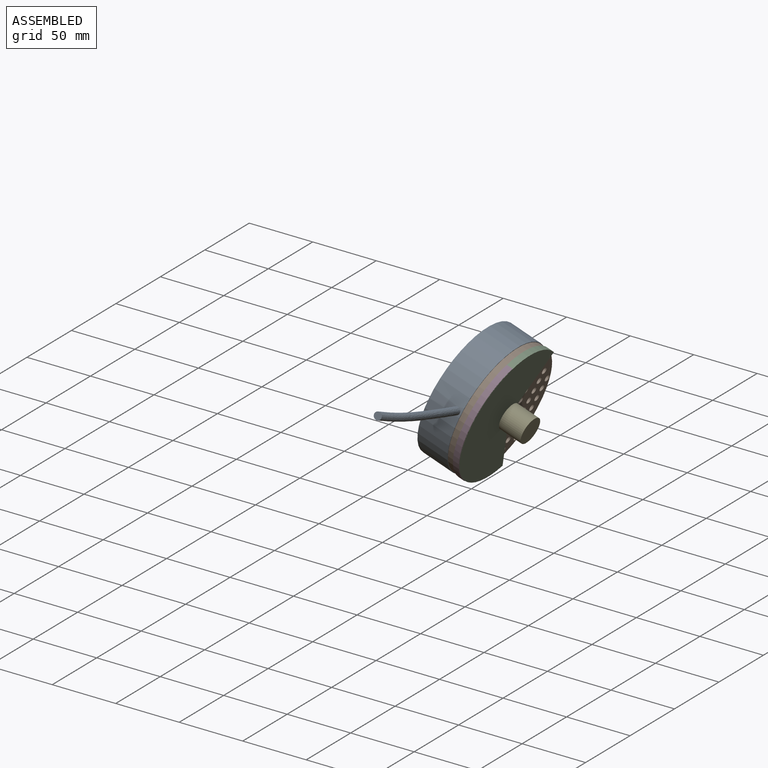
[diagram: assembled view]
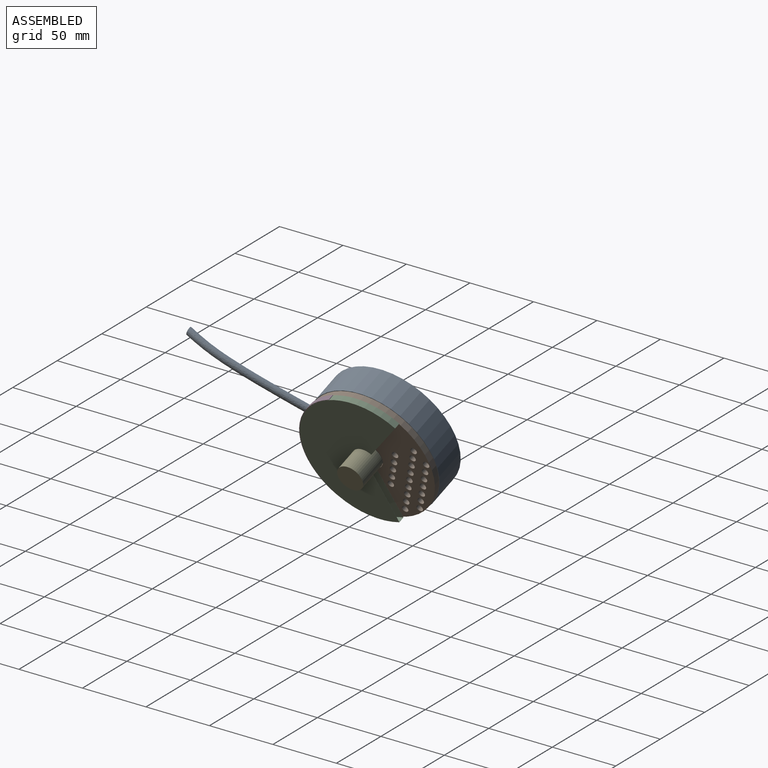
[diagram: assembled view, second angle]
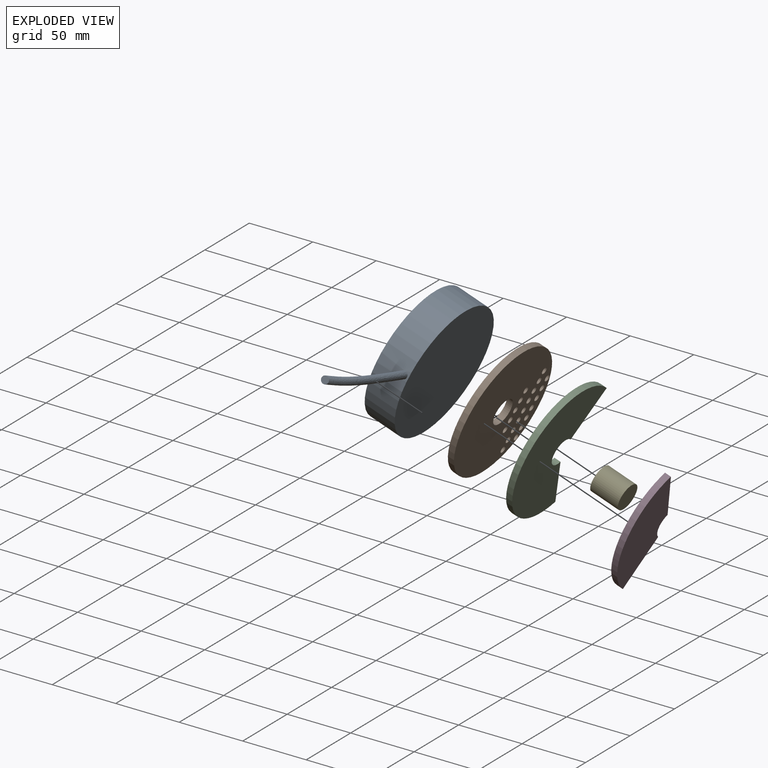
[diagram: exploded view]
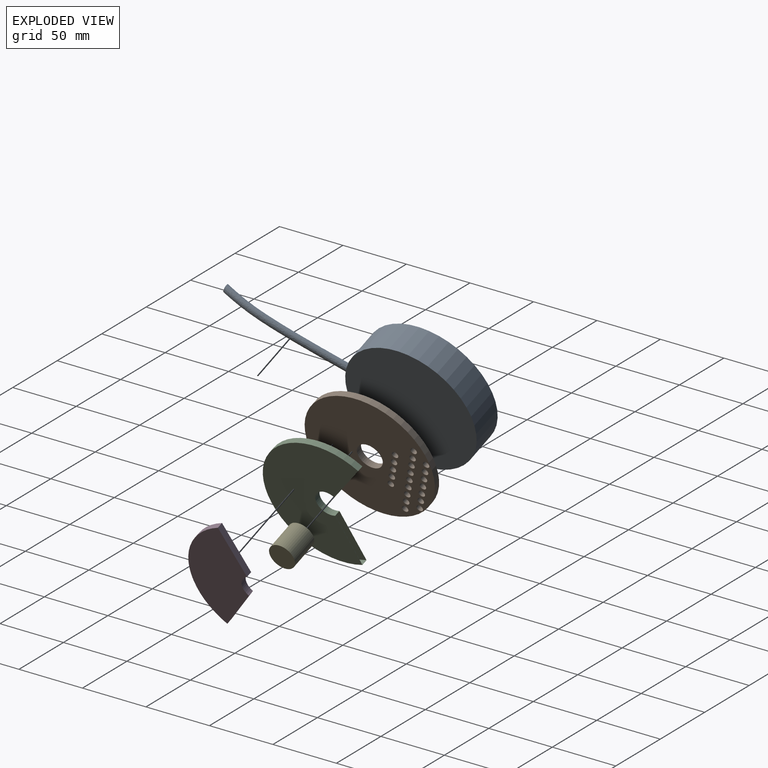
[diagram: exploded view, second angle]
ASSEMBLY  parts=5 mates=4
PART A: 5 faces, bbox 201.5x25.8x101.7 mm
  f0: cylinder r=50.46mm len=100.91mm, axis (0,1,0), area 7898.9mm2, adj f1,f2,f3
  f1: plane 100.91x100.91mm, normal (0,-1,0), area 7998.2mm2, adj f0
  f2: plane 100.91x100.91mm, normal (0,1,0), area 7998.2mm2, adj f0
  f3: bspline ~100.56x12.92mm, area 1825.9mm2, adj f0,f4
  f4: plane 6.69x6.69mm, normal (1,0,0), area 27mm2, adj f3
PART B: 25 faces, bbox 100x5x100 mm
  f0: cylinder r=2.5mm len=5mm, axis (0,1,0), area 78.5mm2, adj f23,f24
  f1: cylinder r=2.5mm len=5mm, axis (0,1,0), area 78.5mm2, adj f23,f24
  f2: cylinder r=2.5mm len=5mm, axis (0,1,0), area 78.5mm2, adj f23,f24
  f3: cylinder r=2.5mm len=5mm, axis (0,1,0), area 78.5mm2, adj f23,f24
  f4: cylinder r=2.5mm len=5mm, axis (0,1,0), area 78.5mm2, adj f23,f24
  f5: cylinder r=2.5mm len=5mm, axis (0,1,0), area 78.5mm2, adj f23,f24
  f6: cylinder r=2.5mm len=5mm, axis (0,1,0), area 78.5mm2, adj f23,f24
  f7: cylinder r=2.5mm len=5mm, axis (0,1,0), area 78.5mm2, adj f23,f24
  f8: cylinder r=2.5mm len=5mm, axis (0,1,0), area 78.5mm2, adj f23,f24
  f9: cylinder r=2.5mm len=5mm, axis (0,1,0), area 78.5mm2, adj f23,f24
  f10: cylinder r=2.5mm len=5mm, axis (0,1,0), area 78.5mm2, adj f23,f24
  f11: cylinder r=2.5mm len=5mm, axis (0,1,0), area 78.5mm2, adj f23,f24
  f12: cylinder r=2.5mm len=5mm, axis (0,1,0), area 78.5mm2, adj f23,f24
  f13: cylinder r=2.5mm len=5mm, axis (0,1,0), area 78.5mm2, adj f23,f24
  f14: cylinder r=2.5mm len=5mm, axis (0,1,0), area 78.5mm2, adj f23,f24
  f15: cylinder r=2.5mm len=5mm, axis (0,1,0), area 78.5mm2, adj f23,f24
  f16: cylinder r=2.5mm len=5mm, axis (0,1,0), area 78.5mm2, adj f23,f24
  f17: cylinder r=2.5mm len=5mm, axis (0,1,0), area 78.5mm2, adj f23,f24
  f18: cylinder r=2.5mm len=5mm, axis (0,1,0), area 78.5mm2, adj f23,f24
  f19: cylinder r=2.5mm len=5mm, axis (0,1,0), area 78.5mm2, adj f23,f24
  f20: cylinder r=50mm len=100mm, axis (0,1,0), area 1570.8mm2, adj f23,f24
  f21: cylinder r=10mm len=20mm, axis (0,1,0), area 314.2mm2, adj f23,f24
  f22: cylinder r=2.5mm len=5mm, axis (0,1,0), area 78.5mm2, adj f23,f24
  f23: plane 100x100mm, normal (0,-1,0), area 7127.5mm2, adj f0,f1,f2,f3,f4,f5,f6,f7
  f24: plane 100x100mm, normal (0,1,0), area 7127.5mm2, adj f0,f1,f2,f3,f4,f5,f6,f7
PART C: 10 faces, bbox 5x101.1x81 mm
  f0: plane 32.48x24.51mm, normal (0,-0.6,0.8), area 9.1mm2, adj f2,f3,f4,f5,f6,f7,f8,f9
  f1: plane 38.11x14.17mm, normal (0,0.35,0.94), area 9.1mm2, adj f2,f3,f4,f5,f6,f7,f8,f9
  f2: plane 101.09x80.99mm, normal (-1,0,0), area 5081.3mm2, adj f0,f1,f3,f5
  f3: cylinder r=50.54mm len=101.09mm, axis (-1,0,0), area 1047.2mm2, adj f0,f1,f2,f4
  f4: plane 101.09x80.99mm, normal (1,0,0), area 5081.3mm2, adj f0,f1,f3,f5
  f5: cylinder r=10mm len=20mm, axis (-1,0,0), area 209.5mm2, adj f0,f1,f2,f4
  f6: plane 100.89x80.83mm, normal (1,0,0), area 5056.2mm2, adj f0,f1,f7,f9
  f7: cylinder r=50.44mm len=100.89mm, axis (-1,0,0), area 1003.4mm2, adj f0,f1,f6,f8
  f8: plane 100.89x80.83mm, normal (-1,0,0), area 5056.2mm2, adj f0,f1,f7,f9
  f9: cylinder r=10.1mm len=20.2mm, axis (-1,0,0), area 203.1mm2, adj f0,f1,f6,f8
PART D: 6 faces, bbox 4.9x87.7x47.1 mm
  f0: cylinder r=10mm len=17.14mm, axis (-1,0,0), area 102.6mm2, adj f1,f3,f4,f5
  f1: plane 32.48x24.51mm, normal (0,0.6,-0.8), area 199.4mm2, adj f0,f2,f4,f5
  f2: cylinder r=50.54mm len=87.72mm, axis (-1,0,0), area 529.8mm2, adj f1,f3,f4,f5
  f3: plane 38.11x14.17mm, normal (0,-0.35,-0.94), area 199.2mm2, adj f0,f2,f4,f5
  f4: plane 87.72x47.1mm, normal (1,0,0), area 2630mm2, adj f0,f1,f2,f3
  f5: plane 87.72x47.1mm, normal (-1,0,0), area 2630mm2, adj f0,f1,f2,f3
PART E: 3 faces, bbox 20x23x20 mm
  f0: cylinder r=10mm len=23mm, axis (0,-1,0), area 1445.1mm2, adj f1,f2
  f1: plane 20x20mm, normal (0,-1,0), area 314.2mm2, adj f0
  f2: plane 20x20mm, normal (0,1,0), area 314.2mm2, adj f0
PLACE A rot(axis=(-0.33,0,-0.94),90deg) t=(-198.68,55.26,63.36)mm
PLACE B rot(axis=(0.73,-0.69,0),153.1deg) t=(-198.65,55.5,63.44)mm
PLACE C rot(axis=(-0.98,0.12,0.17),110.4deg) t=(-189.7,57.97,73.89)mm
PLACE D rot(axis=(0.12,-0.7,0.7),166.4deg) t=(-185.02,56.88,72.45)mm
PLACE E rot(axis=(-0.45,0.63,0.63),131.7deg) t=(-172.19,55.25,54.28)mm
MATE fastened B.f20 <-> A.f0  axis (-0.94,0,0.33) through (-198.65,55.5,63.44)mm
MATE fastened B.f21 <-> C.f3  axis (0.94,0,-0.33) through (-193.93,55.5,61.8)mm
MATE fastened E.f0 <-> D.f0  axis (-0.94,0,0.33) through (-193.9,55.25,61.86)mm
MATE revolute E.f0 <-> C.f5  axis (0.94,0,-0.33) through (-193.9,55.25,61.86)mm
